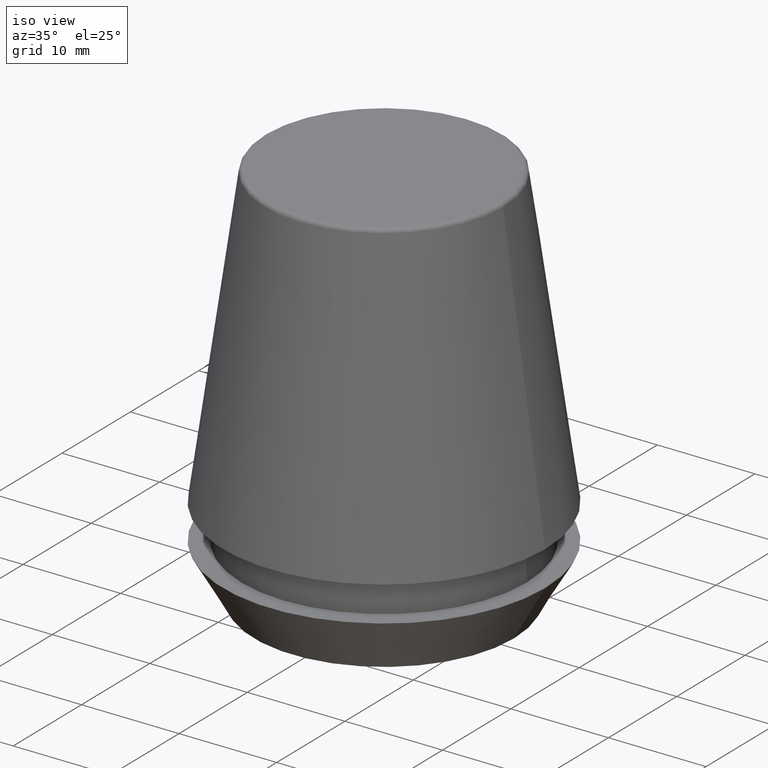
[diagram: clean part render]
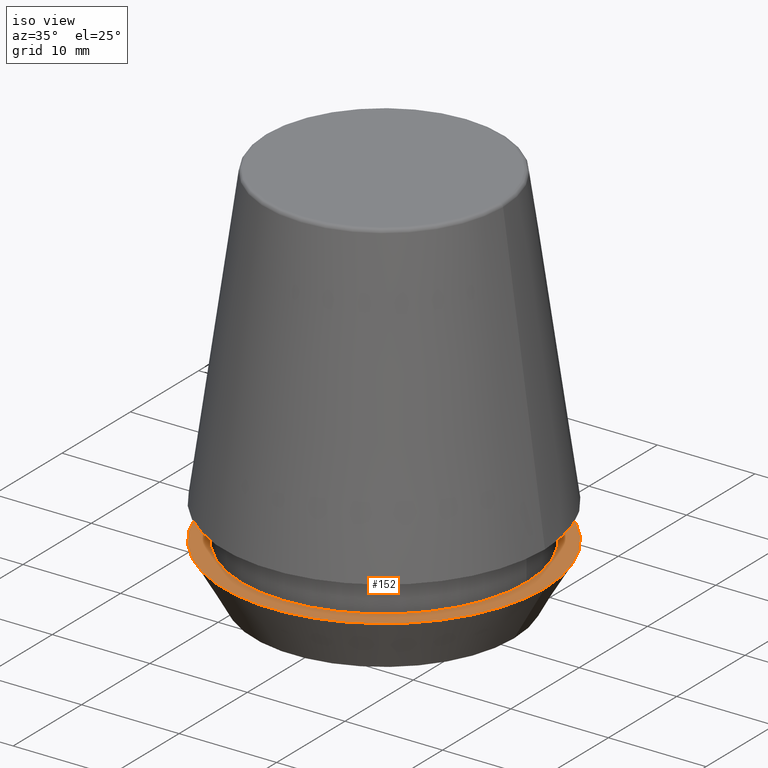
[diagram: same view with one face highlighted and labeled with its STEP entity id]
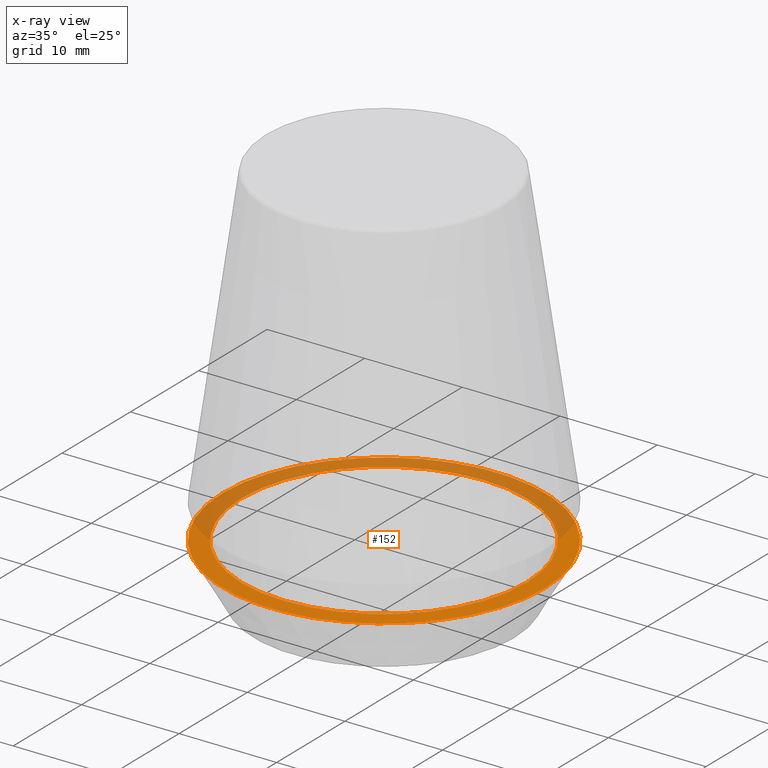
[diagram: x-ray of the same camera — body ghosted, the highlighted face saturated]
A machine part, iso view. The second image highlights one B-rep face of the part: STEP entity #152.
The next image is the same camera in x-ray: the body ghosted, the highlighted face saturated — about 46% of this face is hidden behind the body in this view.
In plain terms, the highlighted planar face has unit normal (0, 0, -1).
Its self-contained STEP definition (entity closure, byte-faithful):
#2 = PLANE ( 'NONE',  #130 ) ;
#27 = DIRECTION ( 'NONE',  ( -0.0000000000000000000, -0.0000000000000000000, 1.000000000000000000 ) ) ;
#28 = DIRECTION ( 'NONE',  ( -0.0000000000000000000, -0.0000000000000000000, 1.000000000000000000 ) ) ;
#35 = AXIS2_PLACEMENT_3D ( 'NONE', #286, #27, #92 ) ;
#54 = DIRECTION ( 'NONE',  ( -0.0000000000000000000, -0.0000000000000000000, 1.000000000000000000 ) ) ;
#92 = DIRECTION ( 'NONE',  ( 1.000000000000000000, 0.0000000000000000000, 0.0000000000000000000 ) ) ;
#98 = EDGE_CURVE ( 'NONE', #273, #143, #217, .T. ) ;
#105 = ORIENTED_EDGE ( 'NONE', *, *, #98, .F. ) ;
#114 = AXIS2_PLACEMENT_3D ( 'NONE', #138, #361, #306 ) ;
#130 = AXIS2_PLACEMENT_3D ( 'NONE', #338, #266, #332 ) ;
#132 = CIRCLE ( 'NONE', #329, 16.50000000000000000 ) ;
#138 = CARTESIAN_POINT ( 'NONE',  ( 0.0000000000000000000, 0.0000000000000000000, 5.500000000000005300 ) ) ;
#143 = VERTEX_POINT ( 'NONE', #381 ) ;
#149 = DIRECTION ( 'NONE',  ( 1.000000000000000000, 0.0000000000000000000, 0.0000000000000000000 ) ) ;
#152 = ADVANCED_FACE ( 'NONE', ( #297, #153 ), #2, .F. ) ;
#153 = FACE_OUTER_BOUND ( 'NONE', #376, .T. ) ;
#162 = VERTEX_POINT ( 'NONE', #203 ) ;
#176 = EDGE_CURVE ( 'NONE', #162, #350, #290, .T. ) ;
#177 = AXIS2_PLACEMENT_3D ( 'NONE', #281, #28, #181 ) ;
#181 = DIRECTION ( 'NONE',  ( 1.000000000000000000, 0.0000000000000000000, 0.0000000000000000000 ) ) ;
#182 = EDGE_LOOP ( 'NONE', ( #353, #105 ) ) ;
#201 = EDGE_CURVE ( 'NONE', #350, #162, #132, .T. ) ;
#203 = CARTESIAN_POINT ( 'NONE',  ( -16.50000000000000000, 2.020667218593133100E-015, 5.500000000000005300 ) ) ;
#217 = CIRCLE ( 'NONE', #177, 14.60000000000000000 ) ;
#219 = EDGE_CURVE ( 'NONE', #143, #273, #367, .T. ) ;
#250 = CARTESIAN_POINT ( 'NONE',  ( 16.50000000000000000, 0.0000000000000000000, 5.500000000000005300 ) ) ;
#266 = DIRECTION ( 'NONE',  ( 0.0000000000000000000, 0.0000000000000000000, -1.000000000000000000 ) ) ;
#273 = VERTEX_POINT ( 'NONE', #323 ) ;
#281 = CARTESIAN_POINT ( 'NONE',  ( 0.0000000000000000000, 0.0000000000000000000, 5.500000000000005300 ) ) ;
#286 = CARTESIAN_POINT ( 'NONE',  ( 0.0000000000000000000, 0.0000000000000000000, 5.500000000000005300 ) ) ;
#290 = CIRCLE ( 'NONE', #114, 16.50000000000000000 ) ;
#297 = FACE_BOUND ( 'NONE', #182, .T. ) ;
#306 = DIRECTION ( 'NONE',  ( 1.000000000000000000, 0.0000000000000000000, 0.0000000000000000000 ) ) ;
#312 = CARTESIAN_POINT ( 'NONE',  ( 0.0000000000000000000, 0.0000000000000000000, 5.500000000000005300 ) ) ;
#323 = CARTESIAN_POINT ( 'NONE',  ( -14.60000000000000000, 1.787984326755135800E-015, 5.500000000000005300 ) ) ;
#325 = ORIENTED_EDGE ( 'NONE', *, *, #201, .T. ) ;
#329 = AXIS2_PLACEMENT_3D ( 'NONE', #312, #54, #149 ) ;
#332 = DIRECTION ( 'NONE',  ( -1.000000000000000000, 0.0000000000000000000, -0.0000000000000000000 ) ) ;
#338 = CARTESIAN_POINT ( 'NONE',  ( 0.0000000000000000000, 16.50000000000000000, 5.500000000000002700 ) ) ;
#349 = ORIENTED_EDGE ( 'NONE', *, *, #176, .T. ) ;
#350 = VERTEX_POINT ( 'NONE', #250 ) ;
#353 = ORIENTED_EDGE ( 'NONE', *, *, #219, .F. ) ;
#361 = DIRECTION ( 'NONE',  ( -0.0000000000000000000, -0.0000000000000000000, 1.000000000000000000 ) ) ;
#367 = CIRCLE ( 'NONE', #35, 14.60000000000000000 ) ;
#376 = EDGE_LOOP ( 'NONE', ( #325, #349 ) ) ;
#381 = CARTESIAN_POINT ( 'NONE',  ( 14.60000000000000000, 0.0000000000000000000, 5.500000000000005300 ) ) ;